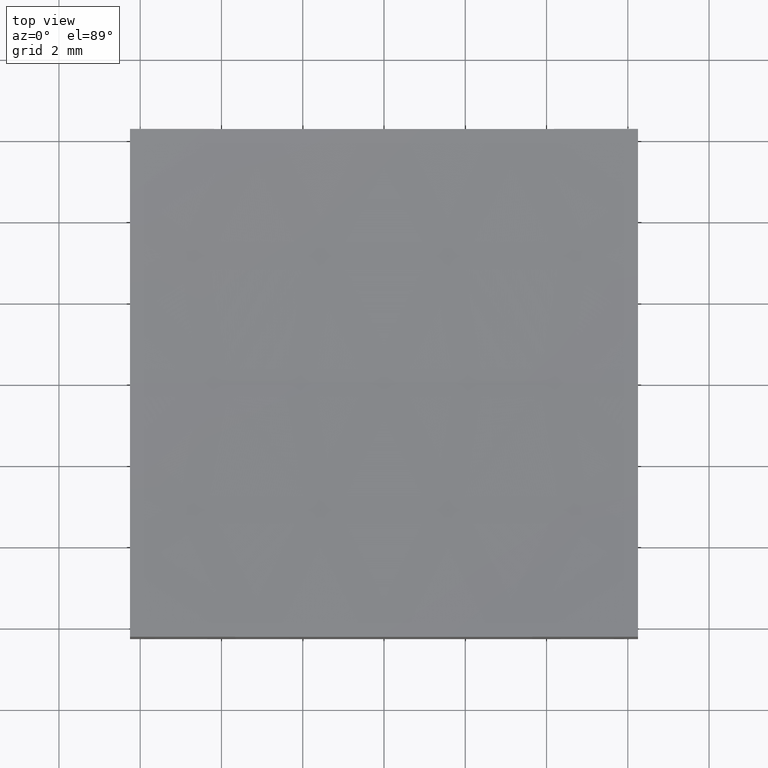
[diagram: clean part render]
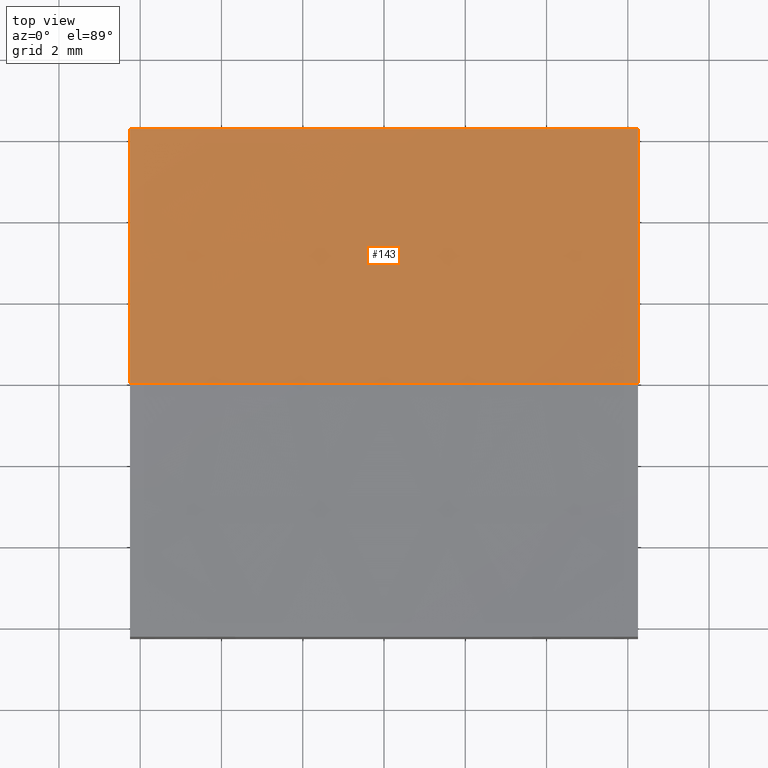
[diagram: same view with one face highlighted and labeled with its STEP entity id]
A machine part, top view. The second image highlights one B-rep face of the part: STEP entity #143.
In plain terms, the highlighted spherical surface has radius 100 mm.
Its self-contained STEP definition (entity closure, byte-faithful):
#1 = DIRECTION ( 'NONE',  ( 0.0000000000000000000, -1.000000000000000000, -0.0000000000000000000 ) ) ;
#9 = DIRECTION ( 'NONE',  ( 0.0000000000000000000, 1.000000000000000000, 0.0000000000000000000 ) ) ;
#15 = DIRECTION ( 'NONE',  ( 0.0000000000000000000, 1.000000000000000000, 0.0000000000000000000 ) ) ;
#19 = EDGE_LOOP ( 'NONE', ( #77, #157, #83, #179, #135 ) ) ;
#23 = CARTESIAN_POINT ( 'NONE',  ( 6.250000000000000000, 6.250000000000000888, 3.391390934317326078 ) ) ;
#30 = DIRECTION ( 'NONE',  ( 1.224646799147353207E-16, 1.000000000000000000, -1.494917516854725104E-32 ) ) ;
#31 = SPHERICAL_SURFACE ( 'NONE', #171, 100.0000000000000000 ) ;
#35 = EDGE_CURVE ( 'NONE', #98, #159, #153, .T. ) ;
#39 = EDGE_CURVE ( 'NONE', #159, #196, #150, .T. ) ;
#54 = CIRCLE ( 'NONE', #199, 99.80449639169570730 ) ;
#57 = DIRECTION ( 'NONE',  ( 0.0000000000000000000, 0.0000000000000000000, -1.000000000000000000 ) ) ;
#66 = CARTESIAN_POINT ( 'NONE',  ( 6.530168136435014218E-15, 0.0000000000000000000, 3.000000000000002665 ) ) ;
#68 = CARTESIAN_POINT ( 'NONE',  ( 6.250000000000000000, 0.0000000000000000000, 3.195503608304305132 ) ) ;
#73 = EDGE_CURVE ( 'NONE', #196, #99, #205, .T. ) ;
#77 = ORIENTED_EDGE ( 'NONE', *, *, #163, .F. ) ;
#83 = ORIENTED_EDGE ( 'NONE', *, *, #39, .T. ) ;
#91 = DIRECTION ( 'NONE',  ( -1.000000000000000000, 1.224646799147353207E-16, 0.0000000000000000000 ) ) ;
#98 = VERTEX_POINT ( 'NONE', #66 ) ;
#99 = VERTEX_POINT ( 'NONE', #167 ) ;
#103 = AXIS2_PLACEMENT_3D ( 'NONE', #185, #9, #166 ) ;
#106 = CARTESIAN_POINT ( 'NONE',  ( -6.250000000000000000, 0.0000000000000000000, 103.0000000000000142 ) ) ;
#109 = DIRECTION ( 'NONE',  ( 1.000000000000000000, 0.0000000000000000000, -1.387778780781445676E-16 ) ) ;
#115 = CARTESIAN_POINT ( 'NONE',  ( 6.250000000000000000, 0.0000000000000000000, 103.0000000000000142 ) ) ;
#120 = CARTESIAN_POINT ( 'NONE',  ( 1.261386203121774235E-14, 0.0000000000000000000, 103.0000000000000142 ) ) ;
#121 = AXIS2_PLACEMENT_3D ( 'NONE', #120, #30, #91 ) ;
#127 = CARTESIAN_POINT ( 'NONE',  ( 1.261386203121774235E-14, 0.0000000000000000000, 103.0000000000000142 ) ) ;
#135 = ORIENTED_EDGE ( 'NONE', *, *, #151, .F. ) ;
#143 = ADVANCED_FACE ( 'NONE', ( #204 ), #31, .F. ) ;
#147 = CARTESIAN_POINT ( 'NONE',  ( -6.250000000000000000, 7.654042494670957606E-16, 3.195503608304305132 ) ) ;
#150 = CIRCLE ( 'NONE', #206, 99.80449639169570730 ) ;
#151 = EDGE_CURVE ( 'NONE', #173, #99, #54, .T. ) ;
#153 = CIRCLE ( 'NONE', #175, 100.0000000000000000 ) ;
#157 = ORIENTED_EDGE ( 'NONE', *, *, #35, .T. ) ;
#159 = VERTEX_POINT ( 'NONE', #68 ) ;
#161 = DIRECTION ( 'NONE',  ( 0.0000000000000000000, 0.0000000000000000000, -1.000000000000000000 ) ) ;
#163 = EDGE_CURVE ( 'NONE', #98, #173, #227, .T. ) ;
#166 = DIRECTION ( 'NONE',  ( 0.0000000000000000000, 0.0000000000000000000, 1.000000000000000000 ) ) ;
#167 = CARTESIAN_POINT ( 'NONE',  ( -6.250000000000000000, 6.250000000000000888, 3.391390934317326078 ) ) ;
#169 = DIRECTION ( 'NONE',  ( 0.0000000000000000000, 0.0000000000000000000, -1.000000000000000000 ) ) ;
#171 = AXIS2_PLACEMENT_3D ( 'NONE', #127, #15, #109 ) ;
#173 = VERTEX_POINT ( 'NONE', #147 ) ;
#174 = CARTESIAN_POINT ( 'NONE',  ( 1.261386203121774235E-14, 0.0000000000000000000, 103.0000000000000142 ) ) ;
#175 = AXIS2_PLACEMENT_3D ( 'NONE', #174, #1, #57 ) ;
#179 = ORIENTED_EDGE ( 'NONE', *, *, #73, .T. ) ;
#180 = DIRECTION ( 'NONE',  ( 1.000000000000000000, 0.0000000000000000000, -0.0000000000000000000 ) ) ;
#185 = CARTESIAN_POINT ( 'NONE',  ( 1.261386203121774235E-14, 6.250000000000000888, 103.0000000000000142 ) ) ;
#187 = DIRECTION ( 'NONE',  ( 1.000000000000000000, 0.0000000000000000000, -0.0000000000000000000 ) ) ;
#196 = VERTEX_POINT ( 'NONE', #23 ) ;
#199 = AXIS2_PLACEMENT_3D ( 'NONE', #106, #187, #169 ) ;
#204 = FACE_OUTER_BOUND ( 'NONE', #19, .T. ) ;
#205 = CIRCLE ( 'NONE', #103, 99.80449639169572151 ) ;
#206 = AXIS2_PLACEMENT_3D ( 'NONE', #115, #180, #161 ) ;
#227 = CIRCLE ( 'NONE', #121, 100.0000000000000000 ) ;